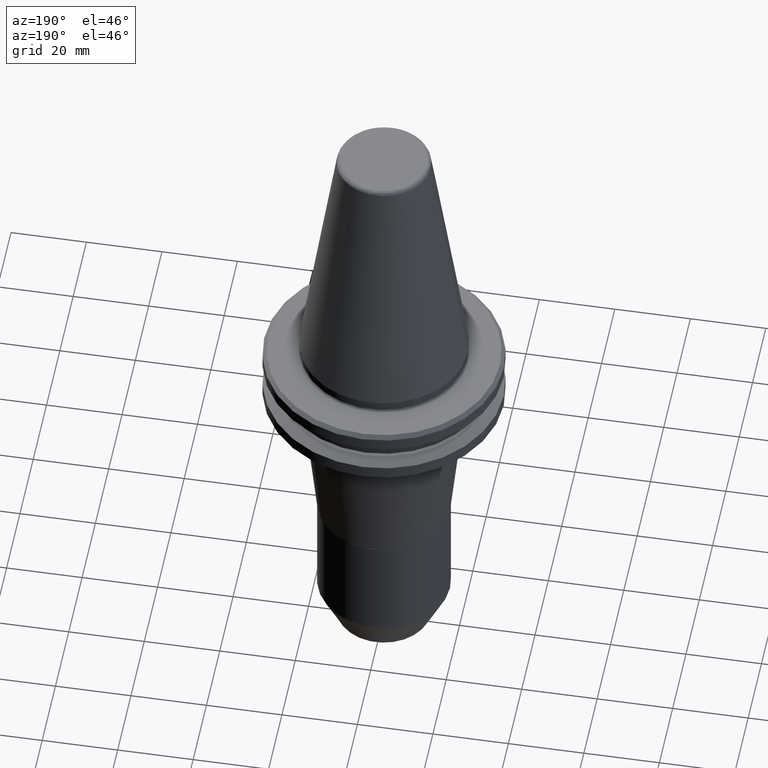
[diagram: clean part render]
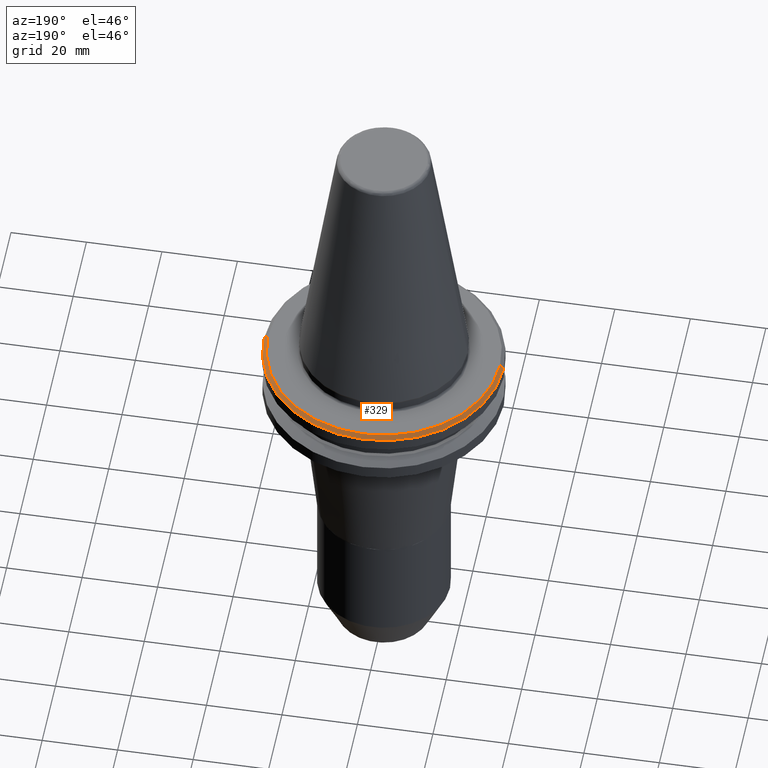
[diagram: same view with one face highlighted and labeled with its STEP entity id]
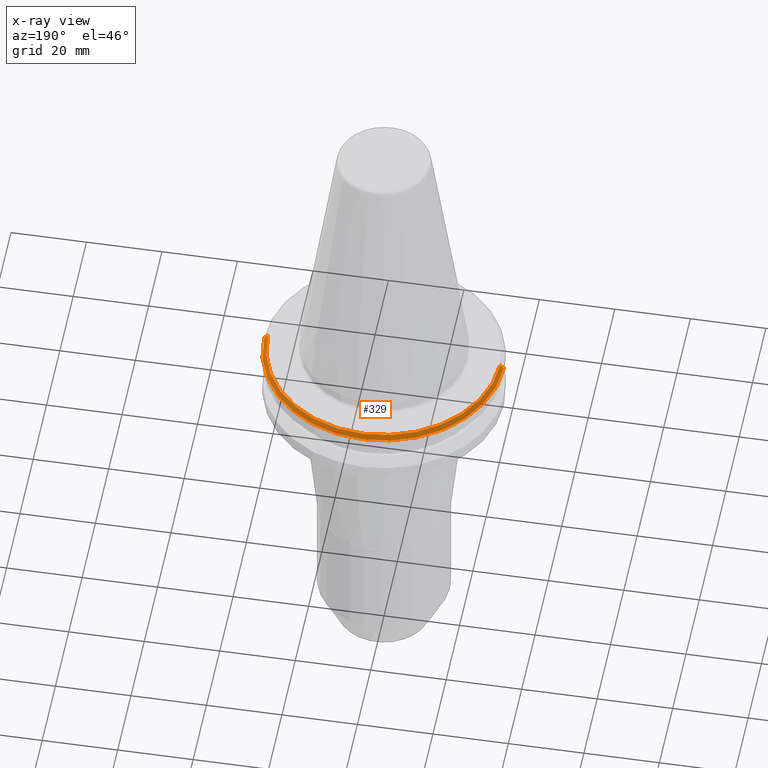
[diagram: x-ray of the same camera — body ghosted, the highlighted face saturated]
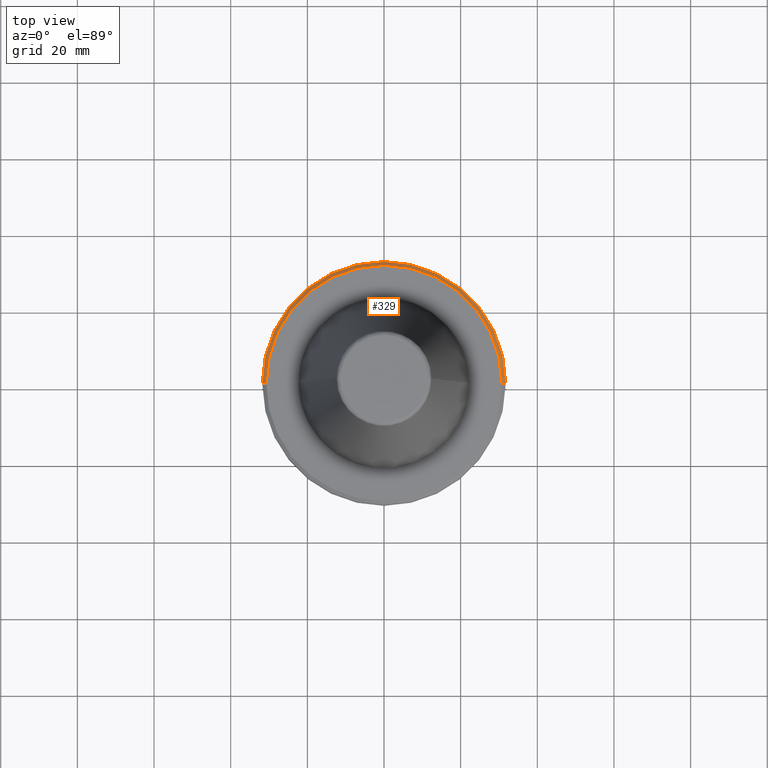
[diagram: same view with one face highlighted and labeled with its STEP entity id]
A machine part, auxiliary view. The second image highlights one B-rep face of the part: STEP entity #329.
The next image is the same camera in x-ray: the body ghosted, the highlighted face saturated — about 0% of this face is hidden behind the body in this view.
A second angle (top view) of the same face is appended — the face is thin or edge-on in the first view.
In plain terms, the highlighted conical surface has half-angle 45 deg.
Its self-contained STEP definition (entity closure, byte-faithful):
#3 = ORIENTED_EDGE ( 'NONE', *, *, #1167, .F. ) ;
#56 = ORIENTED_EDGE ( 'NONE', *, *, #145, .T. ) ;
#86 = CARTESIAN_POINT ( 'NONE',  ( 0.0000000000000000000, 0.0000000000000000000, -4.082842712474625400 ) ) ;
#102 = CONICAL_SURFACE ( 'NONE', #122, 31.63284271247462300, 0.7853981633974387300 ) ;
#122 = AXIS2_PLACEMENT_3D ( 'NONE', #86, #1559, #429 ) ;
#133 = FACE_OUTER_BOUND ( 'NONE', #1264, .T. ) ;
#145 = EDGE_CURVE ( 'NONE', #236, #646, #318, .T. ) ;
#168 = LINE ( 'NONE', #1294, #391 ) ;
#182 = ORIENTED_EDGE ( 'NONE', *, *, #890, .T. ) ;
#233 = VECTOR ( 'NONE', #1109, 1000.000000000000100 ) ;
#236 = VERTEX_POINT ( 'NONE', #649 ) ;
#255 = LINE ( 'NONE', #1115, #233 ) ;
#318 = CIRCLE ( 'NONE', #1002, 31.74999999999994300 ) ;
#329 = ADVANCED_FACE ( 'NONE', ( #133 ), #102, .T. ) ;
#349 = ORIENTED_EDGE ( 'NONE', *, *, #1146, .F. ) ;
#391 = VECTOR ( 'NONE', #1311, 1000.000000000000100 ) ;
#429 = DIRECTION ( 'NONE',  ( -1.000000000000000000, 0.0000000000000000000, 0.0000000000000000000 ) ) ;
#506 = CIRCLE ( 'NONE', #1571, 30.74999999999994300 ) ;
#646 = VERTEX_POINT ( 'NONE', #1395 ) ;
#649 = CARTESIAN_POINT ( 'NONE',  ( 31.74999999999994300, 0.0000000000000000000, -4.200000000000036600 ) ) ;
#781 = VERTEX_POINT ( 'NONE', #1376 ) ;
#890 = EDGE_CURVE ( 'NONE', #1100, #236, #168, .T. ) ;
#893 = CARTESIAN_POINT ( 'NONE',  ( 0.0000000000000000000, 0.0000000000000000000, -4.200000000000036600 ) ) ;
#1002 = AXIS2_PLACEMENT_3D ( 'NONE', #893, #1191, #1436 ) ;
#1090 = DIRECTION ( 'NONE',  ( 1.000000000000000000, 0.0000000000000000000, 0.0000000000000000000 ) ) ;
#1092 = DIRECTION ( 'NONE',  ( -0.0000000000000000000, -0.0000000000000000000, 1.000000000000000000 ) ) ;
#1095 = CARTESIAN_POINT ( 'NONE',  ( 0.0000000000000000000, 0.0000000000000000000, -3.200000000000036100 ) ) ;
#1100 = VERTEX_POINT ( 'NONE', #1143 ) ;
#1109 = DIRECTION ( 'NONE',  ( -0.7071067811865408000, 0.0000000000000000000, -0.7071067811865543500 ) ) ;
#1115 = CARTESIAN_POINT ( 'NONE',  ( -31.63284271247462300, 0.0000000000000000000, -4.082842712474625400 ) ) ;
#1143 = CARTESIAN_POINT ( 'NONE',  ( 30.74999999999994300, 3.827021247335477300E-015, -3.200000000000036100 ) ) ;
#1146 = EDGE_CURVE ( 'NONE', #781, #646, #255, .T. ) ;
#1167 = EDGE_CURVE ( 'NONE', #1100, #781, #506, .T. ) ;
#1191 = DIRECTION ( 'NONE',  ( -0.0000000000000000000, -0.0000000000000000000, 1.000000000000000000 ) ) ;
#1264 = EDGE_LOOP ( 'NONE', ( #3, #182, #56, #349 ) ) ;
#1294 = CARTESIAN_POINT ( 'NONE',  ( 31.63284271247462300, 3.873905957576372200E-015, -4.082842712474625400 ) ) ;
#1311 = DIRECTION ( 'NONE',  ( 0.7071067811865408000, 8.659560562354850300E-017, -0.7071067811865543500 ) ) ;
#1376 = CARTESIAN_POINT ( 'NONE',  ( -30.74999999999994300, 0.0000000000000000000, -3.200000000000036100 ) ) ;
#1395 = CARTESIAN_POINT ( 'NONE',  ( -31.74999999999994300, 3.888253587292843300E-015, -4.200000000000036600 ) ) ;
#1436 = DIRECTION ( 'NONE',  ( 1.000000000000000000, 0.0000000000000000000, 0.0000000000000000000 ) ) ;
#1559 = DIRECTION ( 'NONE',  ( 0.0000000000000000000, 0.0000000000000000000, -1.000000000000000000 ) ) ;
#1571 = AXIS2_PLACEMENT_3D ( 'NONE', #1095, #1092, #1090 ) ;